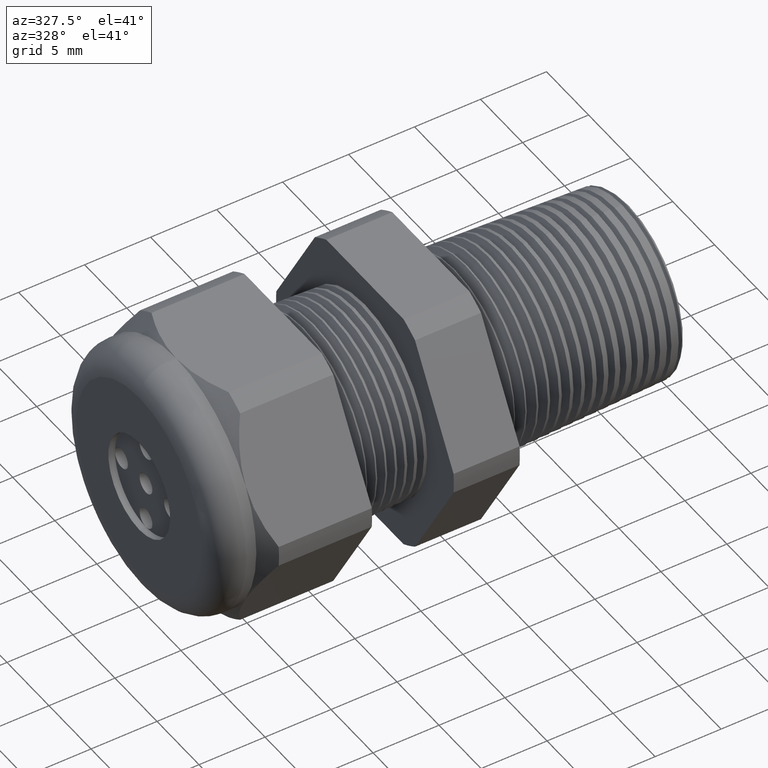
[diagram: clean part render]
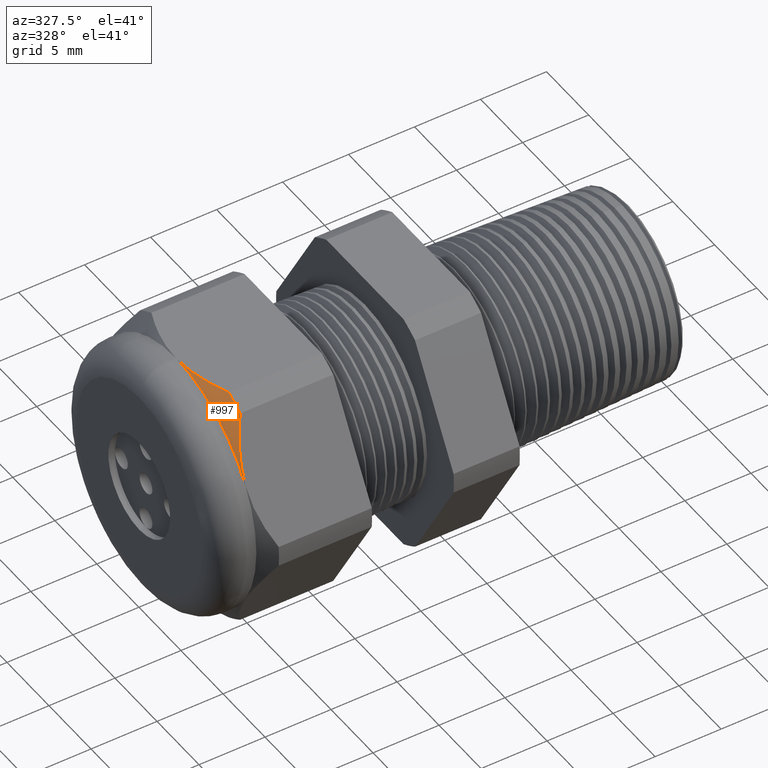
[diagram: same view with one face highlighted and labeled with its STEP entity id]
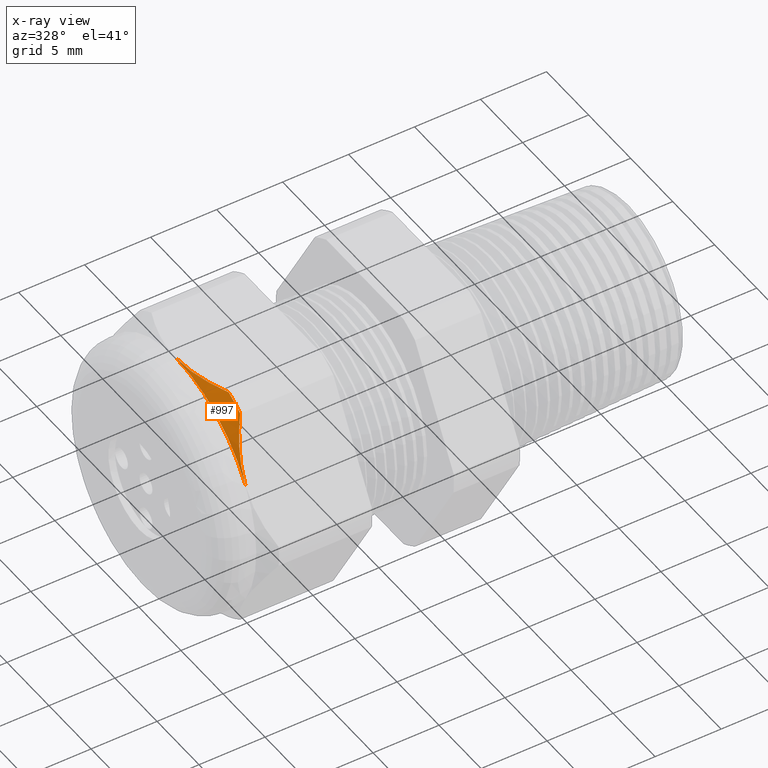
[diagram: x-ray of the same camera — body ghosted, the highlighted face saturated]
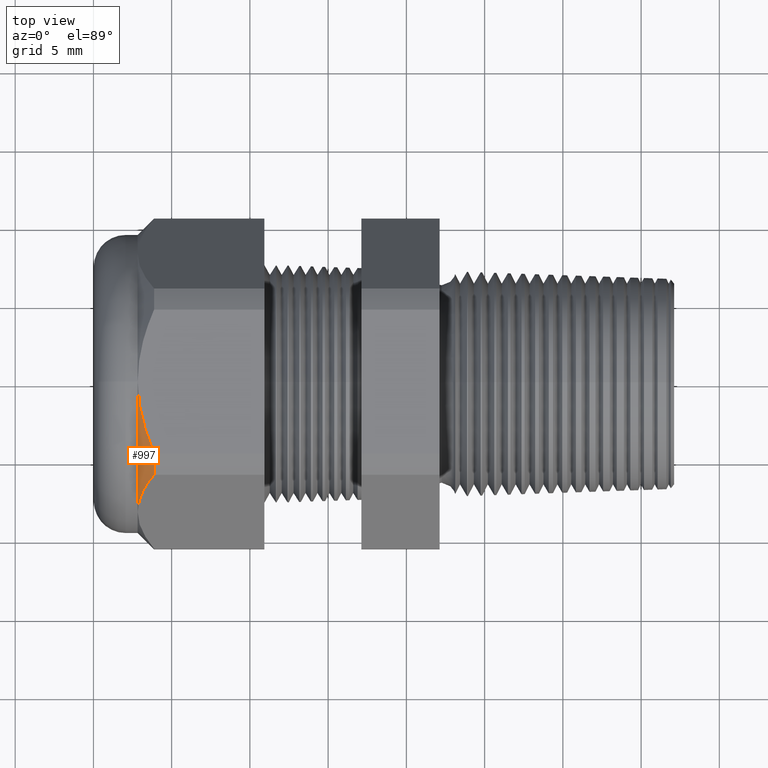
[diagram: same view with one face highlighted and labeled with its STEP entity id]
A machine part, auxiliary view. The second image highlights one B-rep face of the part: STEP entity #997.
The next image is the same camera in x-ray: the body ghosted, the highlighted face saturated — about 0% of this face is hidden behind the body in this view.
A second angle (top view) of the same face is appended — the face is thin or edge-on in the first view.
In plain terms, the highlighted conical surface has half-angle 45 deg.
Its self-contained STEP definition (entity closure, byte-faithful):
#7 = VERTEX_POINT ( 'NONE', #1895 ) ;
#617 = EDGE_CURVE ( 'NONE', #635, #618, #3103, .T. ) ;
#618 = VERTEX_POINT ( 'NONE', #3102 ) ;
#623 = EDGE_CURVE ( 'NONE', #7, #624, #3085, .T. ) ;
#624 = VERTEX_POINT ( 'NONE', #3084 ) ;
#634 = EDGE_CURVE ( 'NONE', #624, #635, #3123, .T. ) ;
#635 = VERTEX_POINT ( 'NONE', #3114 ) ;
#842 = EDGE_CURVE ( 'NONE', #7, #618, #3555, .T. ) ;
#997 = ADVANCED_FACE ( 'NONE', ( #3794 ), #3789, .T. ) ;
#998 = EDGE_LOOP ( 'NONE', ( #999, #1000, #1051, #1052 ) ) ;
#999 = ORIENTED_EDGE ( 'NONE', *, *, #842, .T. ) ;
#1000 = ORIENTED_EDGE ( 'NONE', *, *, #617, .F. ) ;
#1051 = ORIENTED_EDGE ( 'NONE', *, *, #634, .F. ) ;
#1052 = ORIENTED_EDGE ( 'NONE', *, *, #623, .F. ) ;
#1895 = CARTESIAN_POINT ( 'NONE',  ( -1.069763779527559200, 0.0000000000000000000, 0.3749999999999999400 ) ) ;
#3084 = CARTESIAN_POINT ( 'NONE',  ( -1.028513779527559200, -0.1806628420566886700, 0.3749999999999999400 ) ) ;
#3085 = B_SPLINE_CURVE_WITH_KNOTS ( 'NONE', 3,
 ( #3140, #3139, #3138, #3137, #3136, #3135 ),
 .UNSPECIFIED., .F., .F.,
 ( 4, 2, 4 ),
 ( 0.01191928708821687900, 0.01426783552382355200, 0.01661638395943022500 ),
 .UNSPECIFIED. ) ;
#3094 = CARTESIAN_POINT ( 'NONE',  ( -1.069763779527559200, -0.3247595264191646700, 0.1875000000000000600 ) ) ;
#3095 = CARTESIAN_POINT ( 'NONE',  ( -1.069763779527558500, -0.3169392765875834200, 0.2010450700361805200 ) ) ;
#3096 = CARTESIAN_POINT ( 'NONE',  ( -1.068759730589040600, -0.3090355397383388000, 0.2147347438287265900 ) ) ;
#3097 = CARTESIAN_POINT ( 'NONE',  ( -1.064926254644834100, -0.2935887246993246800, 0.2414894122914182100 ) ) ;
#3098 = CARTESIAN_POINT ( 'NONE',  ( -1.062104445229484800, -0.2859780998530067100, 0.2546714012025871300 ) ) ;
#3099 = CARTESIAN_POINT ( 'NONE',  ( -1.051298346633054500, -0.2634379006963009600, 0.2937121713547227700 ) ) ;
#3100 = CARTESIAN_POINT ( 'NONE',  ( -1.040987746498826200, -0.2487982124163727600, 0.3190688552625289300 ) ) ;
#3101 = CARTESIAN_POINT ( 'NONE',  ( -1.028513779527559000, -0.2344281053908205700, 0.3439586107409878200 ) ) ;
#3102 = CARTESIAN_POINT ( 'NONE',  ( -1.069763779527559200, -0.3247595264191646700, 0.1875000000000000600 ) ) ;
#3103 = B_SPLINE_CURVE_WITH_KNOTS ( 'NONE', 3,
 ( #3101, #3100, #3099, #3098, #3097, #3096, #3095, #3094 ),
 .UNSPECIFIED., .F., .F.,
 ( 4, 2, 2, 4 ),
 ( 2.483253706007067000E-007, 0.002355112334987626100, 0.003532544339796141200, 0.004709976344604655800 ),
 .UNSPECIFIED. ) ;
#3114 = CARTESIAN_POINT ( 'NONE',  ( -1.028513779527559000, -0.2344281053908205700, 0.3439586107409878200 ) ) ;
#3115 = DIRECTION ( 'NONE',  ( 0.0000000000000000000, 0.0000000000000000000, -1.000000000000000000 ) ) ;
#3116 = DIRECTION ( 'NONE',  ( 1.000000000000000000, 0.0000000000000000000, 0.0000000000000000000 ) ) ;
#3117 = CARTESIAN_POINT ( 'NONE',  ( -1.028513779527559200, 0.0000000000000000000, 0.0000000000000000000 ) ) ;
#3118 = AXIS2_PLACEMENT_3D ( 'NONE', #3117, #3116, #3115 ) ;
#3123 = CIRCLE ( 'NONE', #3118, 0.4162500000000000100 ) ;
#3135 = CARTESIAN_POINT ( 'NONE',  ( -1.028513779527559200, -0.1806628420566886700, 0.3749999999999999400 ) ) ;
#3136 = CARTESIAN_POINT ( 'NONE',  ( -1.040864619919063900, -0.1522063135617434400, 0.3749999999999998900 ) ) ;
#3137 = CARTESIAN_POINT ( 'NONE',  ( -1.051374803848830600, -0.1224209746056500500, 0.3750000000000001100 ) ) ;
#3138 = CARTESIAN_POINT ( 'NONE',  ( -1.065781561248279700, -0.06212512060126275400, 0.3750000000000000600 ) ) ;
#3139 = CARTESIAN_POINT ( 'NONE',  ( -1.069763779527559200, -0.03141195411055334300, 0.3750000000000000600 ) ) ;
#3140 = CARTESIAN_POINT ( 'NONE',  ( -1.069763779527559200, 0.0000000000000000000, 0.3749999999999999400 ) ) ;
#3551 = DIRECTION ( 'NONE',  ( 0.0000000000000000000, 0.0000000000000000000, -1.000000000000000000 ) ) ;
#3552 = DIRECTION ( 'NONE',  ( 1.000000000000000000, 0.0000000000000000000, 0.0000000000000000000 ) ) ;
#3553 = CARTESIAN_POINT ( 'NONE',  ( -1.069763779527559000, 0.0000000000000000000, 0.0000000000000000000 ) ) ;
#3554 = AXIS2_PLACEMENT_3D ( 'NONE', #3553, #3552, #3551 ) ;
#3555 = CIRCLE ( 'NONE', #3554, 0.3750000000000001100 ) ;
#3784 = DIRECTION ( 'NONE',  ( 0.0000000000000000000, 0.0000000000000000000, 1.000000000000000000 ) ) ;
#3785 = DIRECTION ( 'NONE',  ( 1.000000000000000000, 0.0000000000000000000, 0.0000000000000000000 ) ) ;
#3786 = CARTESIAN_POINT ( 'NONE',  ( -1.069763779527559200, 0.0000000000000000000, 0.0000000000000000000 ) ) ;
#3787 = AXIS2_PLACEMENT_3D ( 'NONE', #3786, #3785, #3784 ) ;
#3789 = CONICAL_SURFACE ( 'NONE', #3787, 0.3749999999999998300, 0.7853981633974501700 ) ;
#3794 = FACE_OUTER_BOUND ( 'NONE', #998, .T. ) ;